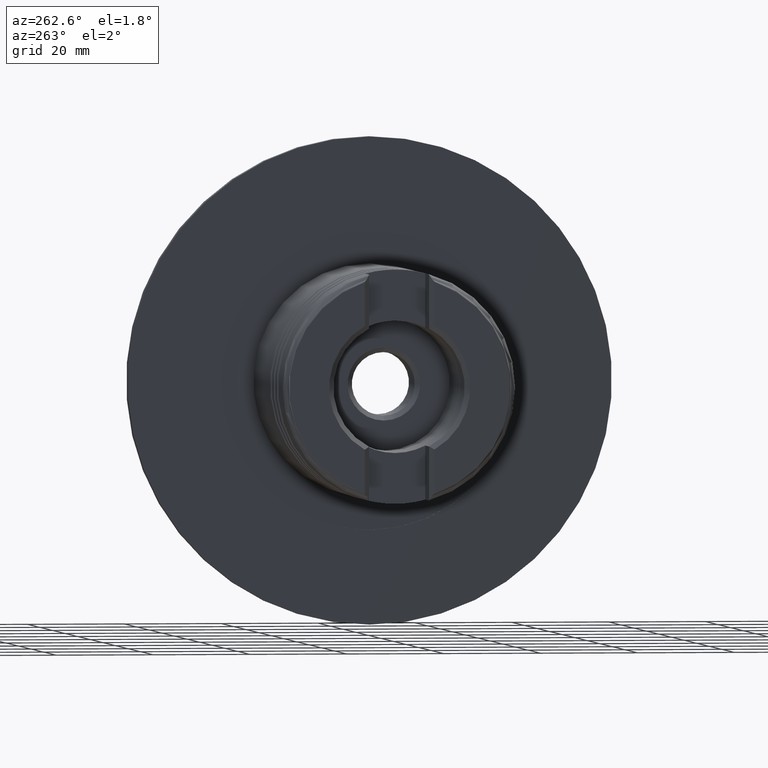
[diagram: clean part render]
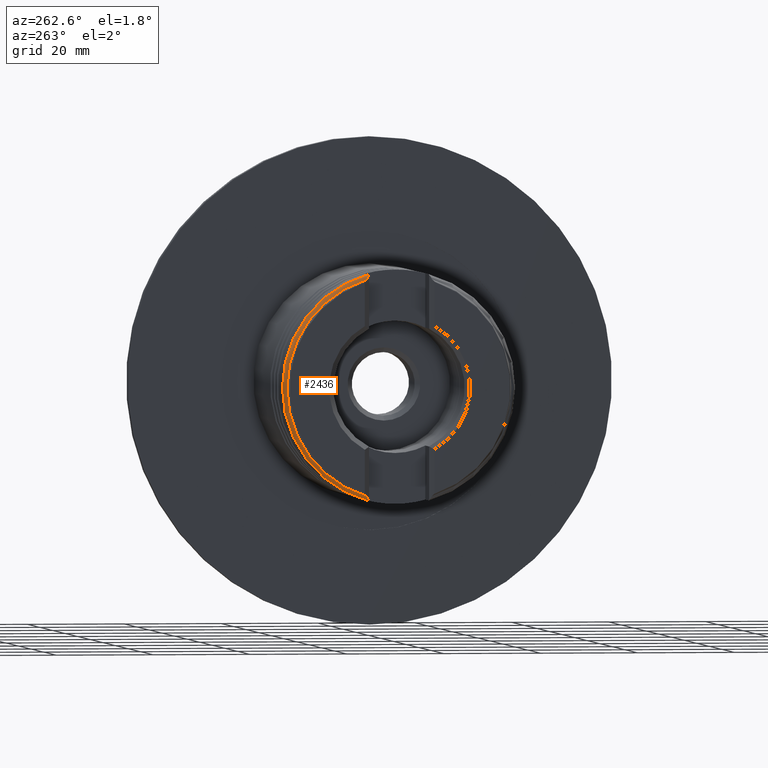
[diagram: same view with one face highlighted and labeled with its STEP entity id]
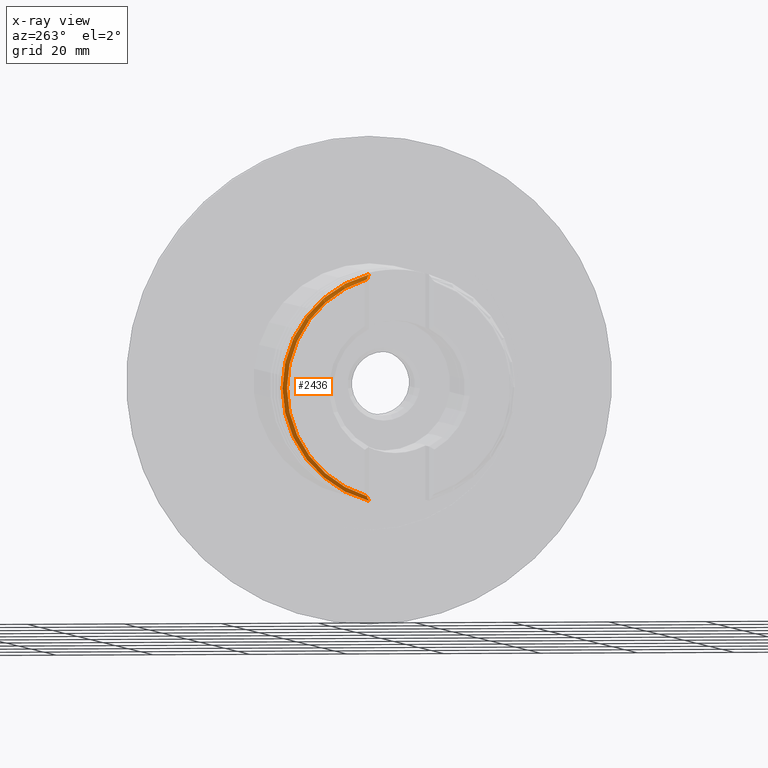
[diagram: x-ray of the same camera — body ghosted, the highlighted face saturated]
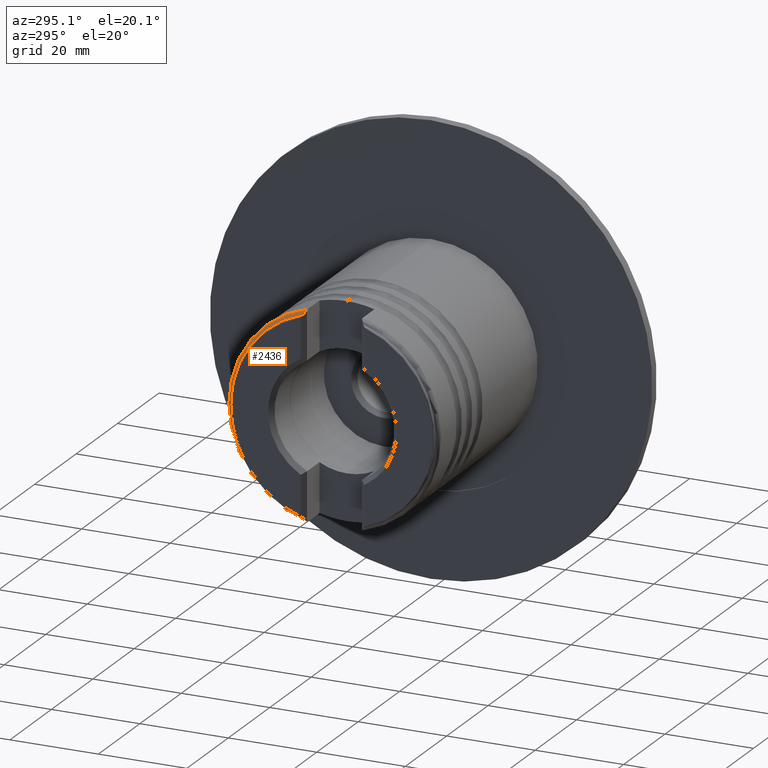
[diagram: same view with one face highlighted and labeled with its STEP entity id]
A machine part, auxiliary view. The second image highlights one B-rep face of the part: STEP entity #2436.
The next image is the same camera in x-ray: the body ghosted, the highlighted face saturated — about 0% of this face is hidden behind the body in this view.
A second angle (auxiliary view) of the same face is appended — the face is thin or edge-on in the first view.
In plain terms, the highlighted toroidal blend (fillet) surface has major radius 23 mm and minor (blend) radius 1 mm.
Its self-contained STEP definition (entity closure, byte-faithful):
#3 = DIRECTION ( 'NONE',  ( 0.0000000000000000000, 0.0000000000000000000, -1.000000000000000000 ) ) ;
#6 = CARTESIAN_POINT ( 'NONE',  ( -49.21219107964482475, 6.662464449644830644, 22.30972609264391338 ) ) ;
#180 = EDGE_CURVE ( 'NONE', #2066, #2369, #1711, .T. ) ;
#252 = CARTESIAN_POINT ( 'NONE',  ( -48.74972662999999784, 6.199999999999994849, 23.04663030844220728 ) ) ;
#432 = CARTESIAN_POINT ( 'NONE',  ( -48.85982302475815686, 6.310096394758151206, 22.95118806687087698 ) ) ;
#435 = FACE_OUTER_BOUND ( 'NONE', #3533, .T. ) ;
#656 = CARTESIAN_POINT ( 'NONE',  ( -48.24972662999999784, 0.0000000000000000000, 0.0000000000000000000 ) ) ;
#661 = CARTESIAN_POINT ( 'NONE',  ( -48.24972662999999784, 0.0000000000000000000, 0.0000000000000000000 ) ) ;
#767 = VERTEX_POINT ( 'NONE', #5671 ) ;
#911 = VERTEX_POINT ( 'NONE', #5353 ) ;
#949 = DIRECTION ( 'NONE',  ( 1.000000000000000000, -0.0000000000000000000, -0.0000000000000000000 ) ) ;
#1022 = ORIENTED_EDGE ( 'NONE', *, *, #180, .F. ) ;
#1076 = VERTEX_POINT ( 'NONE', #1873 ) ;
#1116 = CARTESIAN_POINT ( 'NONE',  ( -49.22872663000025284, 6.679000000000248072, -22.22183811765669503 ) ) ;
#1163 = AXIS2_PLACEMENT_3D ( 'NONE', #1422, #949, #3 ) ;
#1274 = VERTEX_POINT ( 'NONE', #4215 ) ;
#1297 = B_SPLINE_CURVE_WITH_KNOTS ( 'NONE', 3,
 ( #4045, #2721, #3162, #4130, #5475, #252 ),
 .UNSPECIFIED., .F., .F.,
 ( 4, 2, 4 ),
 ( 0.003415805829829129947, 0.003677245385189098058, 0.003938684940549066170 ),
 .UNSPECIFIED. ) ;
#1306 = CARTESIAN_POINT ( 'NONE',  ( -49.12343439587422012, 6.573707765874210018, 22.55367360846429037 ) ) ;
#1346 = CARTESIAN_POINT ( 'NONE',  ( -49.08609453473353312, 6.536367904733538126, 22.62741774778110582 ) ) ;
#1380 = B_SPLINE_CURVE_WITH_KNOTS ( 'NONE', 3,
 ( #1812, #432, #2663, #1346, #1306, #1389, #6, #3059 ),
 .UNSPECIFIED., .F., .F.,
 ( 4, 2, 2, 4 ),
 ( 3.949984598926671359E-05, 0.0005837358292485772971, 0.0008558538208782375152, 0.001127971812507897516 ),
 .UNSPECIFIED. ) ;
#1389 = CARTESIAN_POINT ( 'NONE',  ( -49.18662908677937651, 6.636902456779382398, 22.39471517510969178 ) ) ;
#1422 = CARTESIAN_POINT ( 'NONE',  ( -49.22872662999998994, 0.0000000000000000000, 0.0000000000000000000 ) ) ;
#1560 = DIRECTION ( 'NONE',  ( 0.0000000000000000000, 0.0000000000000000000, -1.000000000000000000 ) ) ;
#1711 = CIRCLE ( 'NONE', #2845, 23.99999999999998934 ) ;
#1722 = AXIS2_PLACEMENT_3D ( 'NONE', #661, #4195, #1560 ) ;
#1731 = EDGE_CURVE ( 'NONE', #2369, #1274, #1297, .T. ) ;
#1812 = CARTESIAN_POINT ( 'NONE',  ( -48.74972662999999784, 6.199999999999994849, 23.04663030844220728 ) ) ;
#1847 = CARTESIAN_POINT ( 'NONE',  ( -48.96059343339755543, 6.410866803397562208, -22.83401857683362479 ) ) ;
#1873 = CARTESIAN_POINT ( 'NONE',  ( -48.74972662999999784, 6.199999999999994849, -23.04663030844387350 ) ) ;
#2066 = VERTEX_POINT ( 'NONE', #4274 ) ;
#2193 = EDGE_CURVE ( 'NONE', #1274, #767, #1380, .T. ) ;
#2218 = ORIENTED_EDGE ( 'NONE', *, *, #4281, .T. ) ;
#2369 = VERTEX_POINT ( 'NONE', #3583 ) ;
#2436 = ADVANCED_FACE ( 'NONE', ( #435 ), #3688, .T. ) ;
#2563 = CARTESIAN_POINT ( 'NONE',  ( -48.59341750494827039, 6.199999999999995737, -23.12648771800310499 ) ) ;
#2663 = CARTESIAN_POINT ( 'NONE',  ( -48.96016445936967898, 6.410437829369669771, 22.83475769216383000 ) ) ;
#2721 = CARTESIAN_POINT ( 'NONE',  ( -48.33804710403592964, 6.199999999999993960, 23.18534019590826745 ) ) ;
#2845 = AXIS2_PLACEMENT_3D ( 'NONE', #656, #5092, #5134 ) ;
#3059 = CARTESIAN_POINT ( 'NONE',  ( -49.22872662999998994, 6.678999999999988724, 22.22183811765749795 ) ) ;
#3090 = ORIENTED_EDGE ( 'NONE', *, *, #2193, .F. ) ;
#3162 = CARTESIAN_POINT ( 'NONE',  ( -48.42441228697376232, 6.199999999999995737, 23.17343717371541345 ) ) ;
#3290 = ORIENTED_EDGE ( 'NONE', *, *, #3780, .F. ) ;
#3441 = CARTESIAN_POINT ( 'NONE',  ( -48.42442317240496408, 6.199999999999994849, -23.17343820292965262 ) ) ;
#3479 = CARTESIAN_POINT ( 'NONE',  ( -48.67513685858940420, 6.199999999999993960, -23.09122583663224759 ) ) ;
#3533 = EDGE_LOOP ( 'NONE', ( #4404, #2218, #3090, #4001, #1022, #3290 ) ) ;
#3571 = B_SPLINE_CURVE_WITH_KNOTS ( 'NONE', 3,
 ( #3885, #3479, #2563, #3441, #3904, #4335 ),
 .UNSPECIFIED., .F., .F.,
 ( 4, 2, 4 ),
 ( 0.006036584063401365975, 0.006297327253664227777, 0.006558070443927089578 ),
 .UNSPECIFIED. ) ;
#3583 = CARTESIAN_POINT ( 'NONE',  ( -48.24972662999999784, 6.199999999999987743, 23.18534019590827100 ) ) ;
#3619 = CARTESIAN_POINT ( 'NONE',  ( -49.12747594731097678, 6.577749317310979116, -22.55931733192110400 ) ) ;
#3658 = CARTESIAN_POINT ( 'NONE',  ( -48.74972662999999784, 6.199999999999994849, -23.04663030844387350 ) ) ;
#3688 = TOROIDAL_SURFACE ( 'NONE', #1722, 22.99999999999998934, 1.000000000000000444 ) ;
#3780 = EDGE_CURVE ( 'NONE', #1076, #2066, #3571, .T. ) ;
#3885 = CARTESIAN_POINT ( 'NONE',  ( -48.74972662999999784, 6.199999999999994849, -23.04663030844387350 ) ) ;
#3904 = CARTESIAN_POINT ( 'NONE',  ( -48.33665985749524197, 6.199999999999995737, -23.18534019590826745 ) ) ;
#4001 = ORIENTED_EDGE ( 'NONE', *, *, #1731, .F. ) ;
#4045 = CARTESIAN_POINT ( 'NONE',  ( -48.24972662999999784, 6.199999999999987743, 23.18534019590827100 ) ) ;
#4050 = CARTESIAN_POINT ( 'NONE',  ( -49.19525806308419646, 6.645531433084197026, -22.39972663716594781 ) ) ;
#4130 = CARTESIAN_POINT ( 'NONE',  ( -48.59334489942323643, 6.199999999999994849, 23.12651194090885554 ) ) ;
#4195 = DIRECTION ( 'NONE',  ( 1.000000000000000000, -0.0000000000000000000, -0.0000000000000000000 ) ) ;
#4215 = CARTESIAN_POINT ( 'NONE',  ( -48.74972662999999784, 6.199999999999994849, 23.04663030844220728 ) ) ;
#4274 = CARTESIAN_POINT ( 'NONE',  ( -48.24972662999999784, 6.199999999999987743, -23.18534019590827100 ) ) ;
#4281 = EDGE_CURVE ( 'NONE', #911, #767, #5676, .T. ) ;
#4335 = CARTESIAN_POINT ( 'NONE',  ( -48.24972662999999784, 6.199999999999987743, -23.18534019590827100 ) ) ;
#4404 = ORIENTED_EDGE ( 'NONE', *, *, #5400, .F. ) ;
#5092 = DIRECTION ( 'NONE',  ( 1.000000000000000000, -0.0000000000000000000, -0.0000000000000000000 ) ) ;
#5134 = DIRECTION ( 'NONE',  ( 0.0000000000000000000, 0.0000000000000000000, -1.000000000000000000 ) ) ;
#5353 = CARTESIAN_POINT ( 'NONE',  ( -49.22872663000025284, 6.679000000000248072, -22.22183811765669503 ) ) ;
#5383 = CARTESIAN_POINT ( 'NONE',  ( -48.85995396860236895, 6.310227338602358849, -22.95107455203665481 ) ) ;
#5400 = EDGE_CURVE ( 'NONE', #911, #1076, #5741, .T. ) ;
#5475 = CARTESIAN_POINT ( 'NONE',  ( -48.67482916603179888, 6.199999999999995737, 23.09140979901573587 ) ) ;
#5671 = CARTESIAN_POINT ( 'NONE',  ( -49.22872662999998994, 6.678999999999988724, 22.22183811765749795 ) ) ;
#5676 = CIRCLE ( 'NONE', #1163, 23.20386024624729515 ) ;
#5741 = B_SPLINE_CURVE_WITH_KNOTS ( 'NONE', 3,
 ( #1116, #4050, #3619, #1847, #5383, #3658 ),
 .UNSPECIFIED., .F., .F.,
 ( 4, 2, 4 ),
 ( 0.001373697768814958640, 0.001918137762093561315, 0.002462577755372163772 ),
 .UNSPECIFIED. ) ;